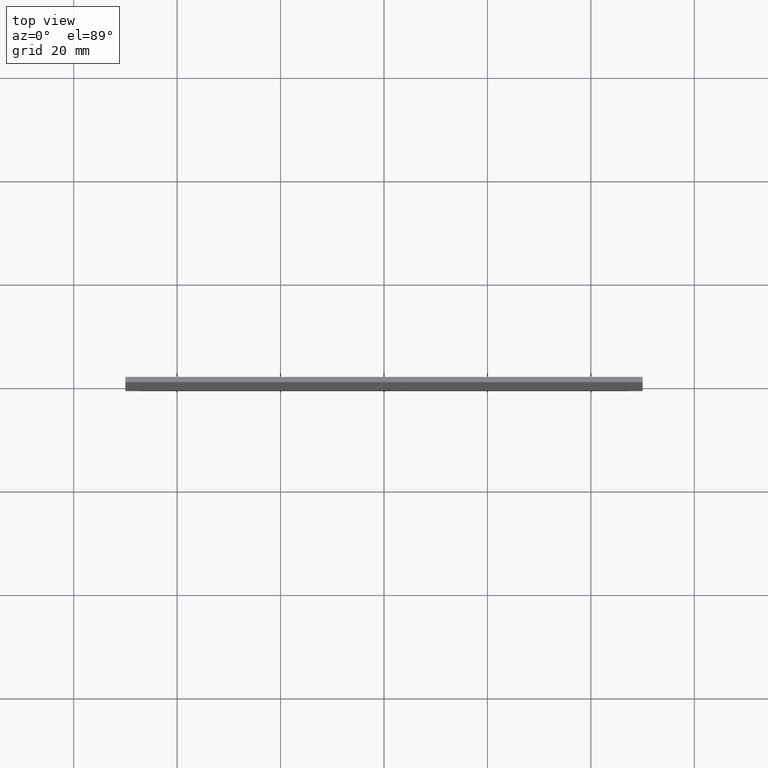
[diagram: clean part render]
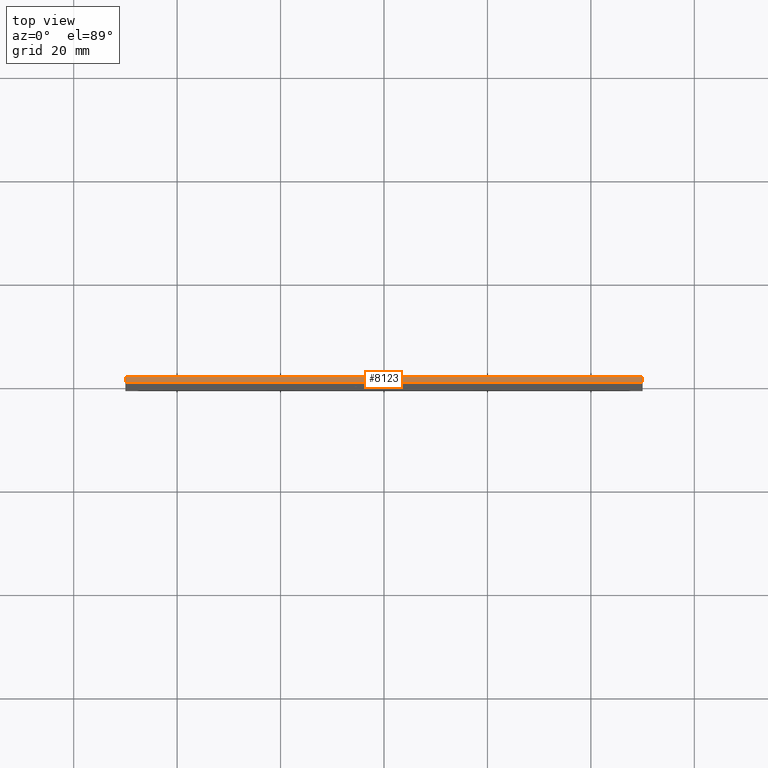
[diagram: same view with one face highlighted and labeled with its STEP entity id]
A machine part, top view. The second image highlights one B-rep face of the part: STEP entity #8123.
In plain terms, the highlighted planar face has unit normal (0, 0, -1).
Its self-contained STEP definition (entity closure, byte-faithful):
#12 = EDGE_CURVE ( 'NONE', #8537, #438, #16469, .T. ) ;
#48 = CARTESIAN_POINT ( 'NONE',  ( -50.00000000000000711, -0.5000000000000000000, 49.99999999999999289 ) ) ;
#438 = VERTEX_POINT ( 'NONE', #7998 ) ;
#601 = LINE ( 'NONE', #8152, #8278 ) ;
#1267 = PLANE ( 'NONE',  #1749 ) ;
#1749 = AXIS2_PLACEMENT_3D ( 'NONE', #11712, #17002, #15910 ) ;
#2294 = VERTEX_POINT ( 'NONE', #3045 ) ;
#2503 = FACE_OUTER_BOUND ( 'NONE', #5459, .T. ) ;
#3045 = CARTESIAN_POINT ( 'NONE',  ( 49.99999999999999289, 0.5000000000000000000, 49.99999999999999289 ) ) ;
#4013 = DIRECTION ( 'NONE',  ( 1.000000000000000000, 0.000000000000000000, 0.000000000000000000 ) ) ;
#4487 = EDGE_CURVE ( 'NONE', #438, #15992, #15200, .T. ) ;
#4491 = DIRECTION ( 'NONE',  ( -0.000000000000000000, -1.000000000000000000, -0.000000000000000000 ) ) ;
#5038 = CARTESIAN_POINT ( 'NONE',  ( 49.99999999999999289, 0.5000000000000000000, 49.99999999999999289 ) ) ;
#5430 = VECTOR ( 'NONE', #9223, 1000.000000000000000 ) ;
#5459 = EDGE_LOOP ( 'NONE', ( #16959, #13940, #5614, #7922 ) ) ;
#5614 = ORIENTED_EDGE ( 'NONE', *, *, #16458, .F. ) ;
#7056 = VECTOR ( 'NONE', #9487, 1000.000000000000000 ) ;
#7473 = LINE ( 'NONE', #5038, #7056 ) ;
#7922 = ORIENTED_EDGE ( 'NONE', *, *, #12, .T. ) ;
#7998 = CARTESIAN_POINT ( 'NONE',  ( -50.00000000000000711, -0.5000000000000000000, 49.99999999999999289 ) ) ;
#8123 = ADVANCED_FACE ( 'NONE', ( #2503 ), #1267, .F. ) ;
#8152 = CARTESIAN_POINT ( 'NONE',  ( -50.00000000000000711, 0.5000000000000000000, 49.99999999999999289 ) ) ;
#8278 = VECTOR ( 'NONE', #4013, 1000.000000000000000 ) ;
#8537 = VERTEX_POINT ( 'NONE', #9056 ) ;
#8630 = VECTOR ( 'NONE', #4491, 1000.000000000000000 ) ;
#9056 = CARTESIAN_POINT ( 'NONE',  ( -50.00000000000000711, 0.5000000000000000000, 49.99999999999999289 ) ) ;
#9223 = DIRECTION ( 'NONE',  ( 1.000000000000000000, 0.000000000000000000, 0.000000000000000000 ) ) ;
#9419 = CARTESIAN_POINT ( 'NONE',  ( 49.99999999999999289, -0.5000000000000000000, 49.99999999999999289 ) ) ;
#9487 = DIRECTION ( 'NONE',  ( -0.000000000000000000, -1.000000000000000000, -0.000000000000000000 ) ) ;
#10551 = EDGE_CURVE ( 'NONE', #2294, #15992, #7473, .T. ) ;
#11712 = CARTESIAN_POINT ( 'NONE',  ( -50.00000000000000711, 0.5000000000000000000, 49.99999999999999289 ) ) ;
#13940 = ORIENTED_EDGE ( 'NONE', *, *, #10551, .F. ) ;
#15157 = CARTESIAN_POINT ( 'NONE',  ( -50.00000000000000711, 0.5000000000000000000, 49.99999999999999289 ) ) ;
#15200 = LINE ( 'NONE', #48, #5430 ) ;
#15910 = DIRECTION ( 'NONE',  ( -1.000000000000000000, 0.000000000000000000, -0.000000000000000000 ) ) ;
#15992 = VERTEX_POINT ( 'NONE', #9419 ) ;
#16458 = EDGE_CURVE ( 'NONE', #8537, #2294, #601, .T. ) ;
#16469 = LINE ( 'NONE', #15157, #8630 ) ;
#16959 = ORIENTED_EDGE ( 'NONE', *, *, #4487, .T. ) ;
#17002 = DIRECTION ( 'NONE',  ( 0.000000000000000000, 0.000000000000000000, -1.000000000000000000 ) ) ;